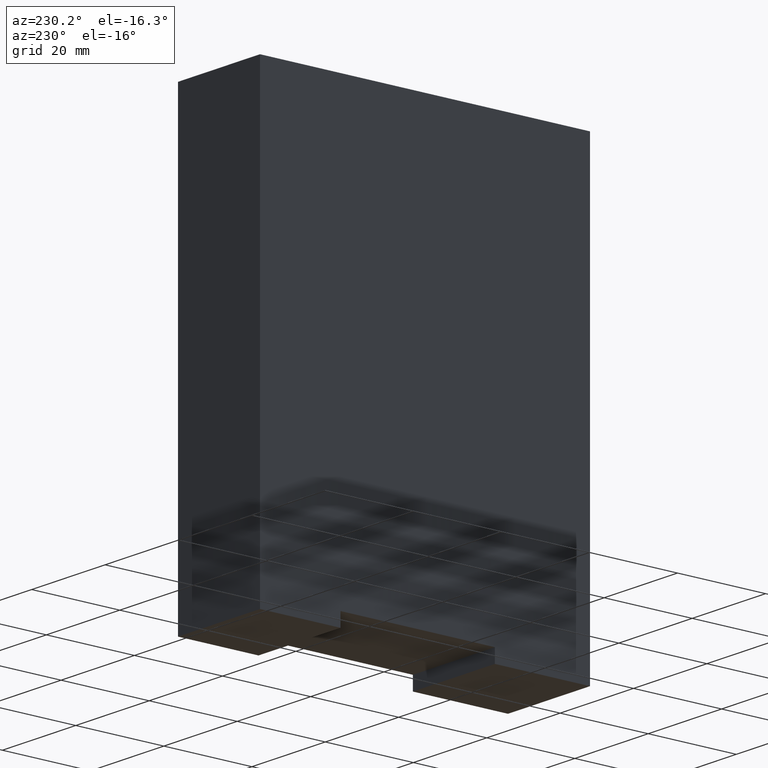
[diagram: clean part render]
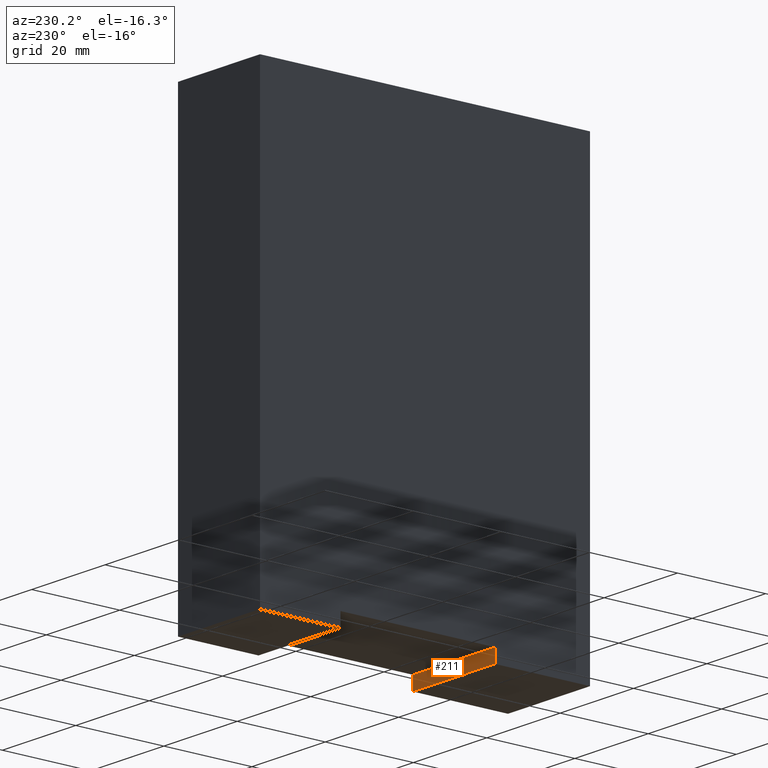
[diagram: same view with one face highlighted and labeled with its STEP entity id]
A machine part, auxiliary view. The second image highlights one B-rep face of the part: STEP entity #211.
In plain terms, the highlighted planar face has unit normal (0, -1, 0).
Its self-contained STEP definition (entity closure, byte-faithful):
#26=DIRECTION('',(0.E0,0.E0,1.E0));
#27=VECTOR('',#26,1.2E-1);
#28=CARTESIAN_POINT('',(-4.4E-1,-6.25E-1,-3.97E0));
#29=LINE('',#28,#27);
#38=DIRECTION('',(-1.E0,0.E0,0.E0));
#39=VECTOR('',#38,8.8E-1);
#40=CARTESIAN_POINT('',(4.4E-1,-6.25E-1,-3.85E0));
#41=LINE('',#40,#39);
#70=DIRECTION('',(1.E0,0.E0,0.E0));
#71=VECTOR('',#70,8.8E-1);
#72=CARTESIAN_POINT('',(-4.4E-1,-6.25E-1,-3.97E0));
#73=LINE('',#72,#71);
#82=DIRECTION('',(0.E0,0.E0,1.E0));
#83=VECTOR('',#82,1.2E-1);
#84=CARTESIAN_POINT('',(4.4E-1,-6.25E-1,-3.97E0));
#85=LINE('',#84,#83);
#118=CARTESIAN_POINT('',(-4.4E-1,-6.25E-1,-3.85E0));
#119=VERTEX_POINT('',#118);
#120=CARTESIAN_POINT('',(-4.4E-1,-6.25E-1,-3.97E0));
#121=VERTEX_POINT('',#120);
#124=CARTESIAN_POINT('',(4.4E-1,-6.25E-1,-3.85E0));
#125=VERTEX_POINT('',#124);
#128=CARTESIAN_POINT('',(4.4E-1,-6.25E-1,-3.97E0));
#129=VERTEX_POINT('',#128);
#198=CARTESIAN_POINT('',(4.4E-1,-6.25E-1,-3.85E0));
#199=DIRECTION('',(0.E0,-1.E0,0.E0));
#200=DIRECTION('',(0.E0,0.E0,-1.E0));
#201=AXIS2_PLACEMENT_3D('',#198,#199,#200);
#202=PLANE('',#201);
#203=ORIENTED_EDGE('',*,*,#162,.F.);
#205=ORIENTED_EDGE('',*,*,#204,.T.);
#207=ORIENTED_EDGE('',*,*,#206,.T.);
#208=ORIENTED_EDGE('',*,*,#190,.T.);
#209=EDGE_LOOP('',(#203,#205,#207,#208));
#210=FACE_OUTER_BOUND('',#209,.F.);
#211=ADVANCED_FACE('',(#210),#202,.F.);
#162=EDGE_CURVE('',#121,#119,#29,.T.);
#190=EDGE_CURVE('',#125,#119,#41,.T.);
#204=EDGE_CURVE('',#121,#129,#73,.T.);
#206=EDGE_CURVE('',#129,#125,#85,.T.);